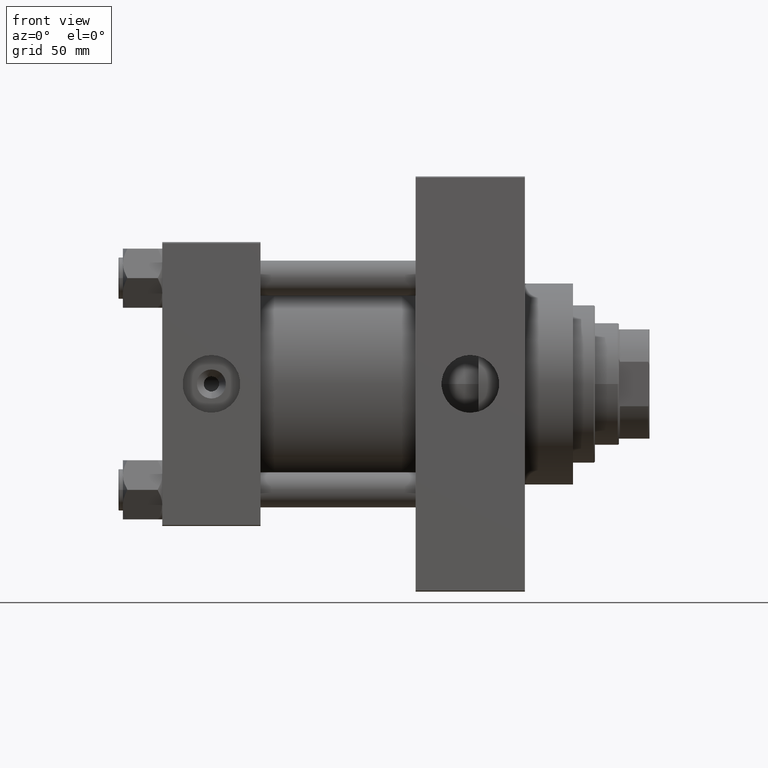
[diagram: clean part render]
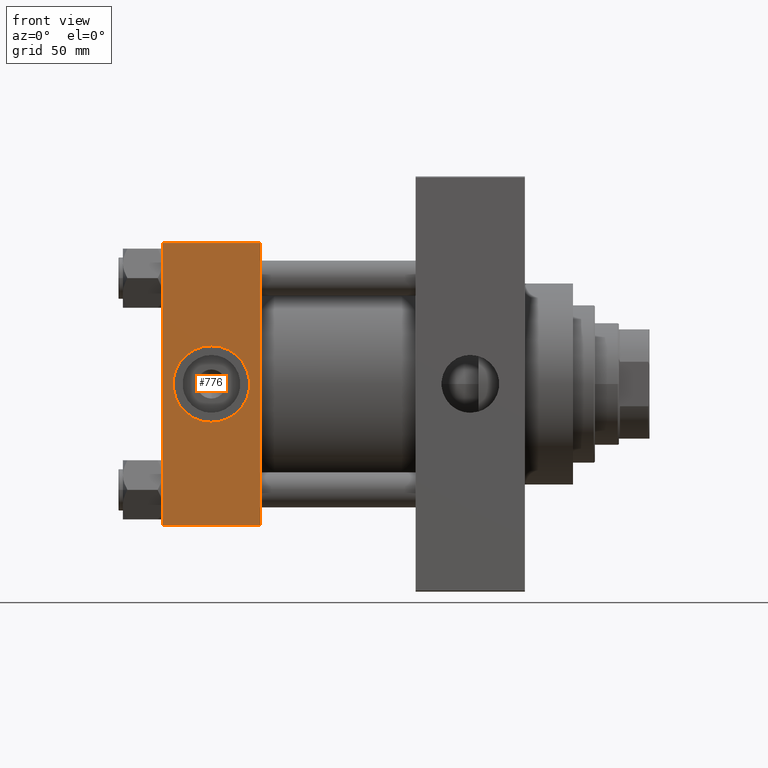
[diagram: same view with one face highlighted and labeled with its STEP entity id]
A machine part, front view. The second image highlights one B-rep face of the part: STEP entity #776.
In plain terms, the highlighted planar face has unit normal (0, 1, 0).
Its self-contained STEP definition (entity closure, byte-faithful):
#555 = EDGE_CURVE ( 'NONE', #33110, #41047, #31462, .T. ) ;
#584 = ORIENTED_EDGE ( 'NONE', *, *, #5411, .F. ) ;
#776 = ADVANCED_FACE ( 'NONE', ( #30679, #23439 ), #34775, .F. ) ;
#1718 = DIRECTION ( 'NONE',  ( -0.000000000000000000, 1.000000000000000000, 0.000000000000000000 ) ) ;
#4707 = ORIENTED_EDGE ( 'NONE', *, *, #25338, .T. ) ;
#4711 = AXIS2_PLACEMENT_3D ( 'NONE', #41782, #1718, #23908 ) ;
#5411 = EDGE_CURVE ( 'NONE', #42800, #26900, #15350, .T. ) ;
#5688 = LINE ( 'NONE', #20872, #32432 ) ;
#8707 = DIRECTION ( 'NONE',  ( 1.000000000000000000, 0.000000000000000000, 0.000000000000000000 ) ) ;
#9012 = CARTESIAN_POINT ( 'NONE',  ( 0.000000000000000000, -65.00000000000000000, 65.00000000000000000 ) ) ;
#9306 = DIRECTION ( 'NONE',  ( -1.000000000000000000, 0.000000000000000000, 0.000000000000000000 ) ) ;
#9374 = VERTEX_POINT ( 'NONE', #43697 ) ;
#11378 = CARTESIAN_POINT ( 'NONE',  ( 0.000000000000000000, -65.00000000000000000, 64.50000000000000000 ) ) ;
#11904 = EDGE_LOOP ( 'NONE', ( #36214, #14038 ) ) ;
#11975 = DIRECTION ( 'NONE',  ( 0.000000000000000000, 0.000000000000000000, -1.000000000000000000 ) ) ;
#12338 = DIRECTION ( 'NONE',  ( 0.000000000000000000, 0.000000000000000000, -1.000000000000000000 ) ) ;
#13284 = CARTESIAN_POINT ( 'NONE',  ( 0.000000000000000000, -65.00000000000000000, -64.49999999999991473 ) ) ;
#14038 = ORIENTED_EDGE ( 'NONE', *, *, #30418, .F. ) ;
#14720 = ORIENTED_EDGE ( 'NONE', *, *, #26053, .T. ) ;
#15202 = CARTESIAN_POINT ( 'NONE',  ( 22.50000000000000000, -65.00000000000000000, -17.50000000000000000 ) ) ;
#15350 = LINE ( 'NONE', #37814, #41880 ) ;
#17926 = DIRECTION ( 'NONE',  ( 0.000000000000000000, 0.000000000000000000, -1.000000000000000000 ) ) ;
#19457 = AXIS2_PLACEMENT_3D ( 'NONE', #37464, #45451, #12338 ) ;
#19879 = DIRECTION ( 'NONE',  ( 0.000000000000000000, 0.000000000000000000, -1.000000000000000000 ) ) ;
#20872 = CARTESIAN_POINT ( 'NONE',  ( 45.00000000000000000, -65.00000000000000000, 64.50000000000000000 ) ) ;
#23184 = CARTESIAN_POINT ( 'NONE',  ( 45.00000000000000000, -65.00000000000000000, -64.49999999999991473 ) ) ;
#23439 = FACE_OUTER_BOUND ( 'NONE', #34409, .T. ) ;
#23726 = ORIENTED_EDGE ( 'NONE', *, *, #555, .T. ) ;
#23908 = DIRECTION ( 'NONE',  ( 0.000000000000000000, -0.000000000000000000, 1.000000000000000000 ) ) ;
#25338 = EDGE_CURVE ( 'NONE', #41047, #26900, #42042, .T. ) ;
#25403 = DIRECTION ( 'NONE',  ( 0.000000000000000000, -1.000000000000000000, -8.673617379884036705E-17 ) ) ;
#26053 = EDGE_CURVE ( 'NONE', #42800, #33110, #5688, .T. ) ;
#26440 = VERTEX_POINT ( 'NONE', #15202 ) ;
#26900 = VERTEX_POINT ( 'NONE', #42675 ) ;
#27377 = CIRCLE ( 'NONE', #28909, 17.50000000000000000 ) ;
#28909 = AXIS2_PLACEMENT_3D ( 'NONE', #29037, #25403, #17926 ) ;
#29037 = CARTESIAN_POINT ( 'NONE',  ( 22.50000000000000000, -65.00000000000000000, 0.000000000000000000 ) ) ;
#30135 = VECTOR ( 'NONE', #19879, 1000.000000000000000 ) ;
#30418 = EDGE_CURVE ( 'NONE', #9374, #26440, #31816, .T. ) ;
#30679 = FACE_BOUND ( 'NONE', #11904, .T. ) ;
#31462 = LINE ( 'NONE', #9012, #30135 ) ;
#31816 = CIRCLE ( 'NONE', #19457, 17.50000000000000000 ) ;
#32432 = VECTOR ( 'NONE', #9306, 1000.000000000000000 ) ;
#33110 = VERTEX_POINT ( 'NONE', #11378 ) ;
#34409 = EDGE_LOOP ( 'NONE', ( #23726, #4707, #584, #14720 ) ) ;
#34775 = PLANE ( 'NONE',  #4711 ) ;
#36214 = ORIENTED_EDGE ( 'NONE', *, *, #38836, .F. ) ;
#37181 = CARTESIAN_POINT ( 'NONE',  ( 45.00000000000000000, -65.00000000000000000, 64.50000000000000000 ) ) ;
#37464 = CARTESIAN_POINT ( 'NONE',  ( 22.50000000000000000, -65.00000000000000000, 0.000000000000000000 ) ) ;
#37814 = CARTESIAN_POINT ( 'NONE',  ( 45.00000000000000000, -65.00000000000000000, 65.00000000000000000 ) ) ;
#38836 = EDGE_CURVE ( 'NONE', #26440, #9374, #27377, .T. ) ;
#41047 = VERTEX_POINT ( 'NONE', #13284 ) ;
#41782 = CARTESIAN_POINT ( 'NONE',  ( 45.00000000000000000, -65.00000000000000000, 65.00000000000000000 ) ) ;
#41880 = VECTOR ( 'NONE', #11975, 1000.000000000000000 ) ;
#42042 = LINE ( 'NONE', #23184, #46305 ) ;
#42675 = CARTESIAN_POINT ( 'NONE',  ( 45.00000000000000000, -65.00000000000000000, -64.49999999999991473 ) ) ;
#42800 = VERTEX_POINT ( 'NONE', #37181 ) ;
#43697 = CARTESIAN_POINT ( 'NONE',  ( 22.50000000000000355, -65.00000000000000000, 17.50000000000000000 ) ) ;
#45451 = DIRECTION ( 'NONE',  ( 0.000000000000000000, -1.000000000000000000, -8.673617379884036705E-17 ) ) ;
#46305 = VECTOR ( 'NONE', #8707, 1000.000000000000000 ) ;